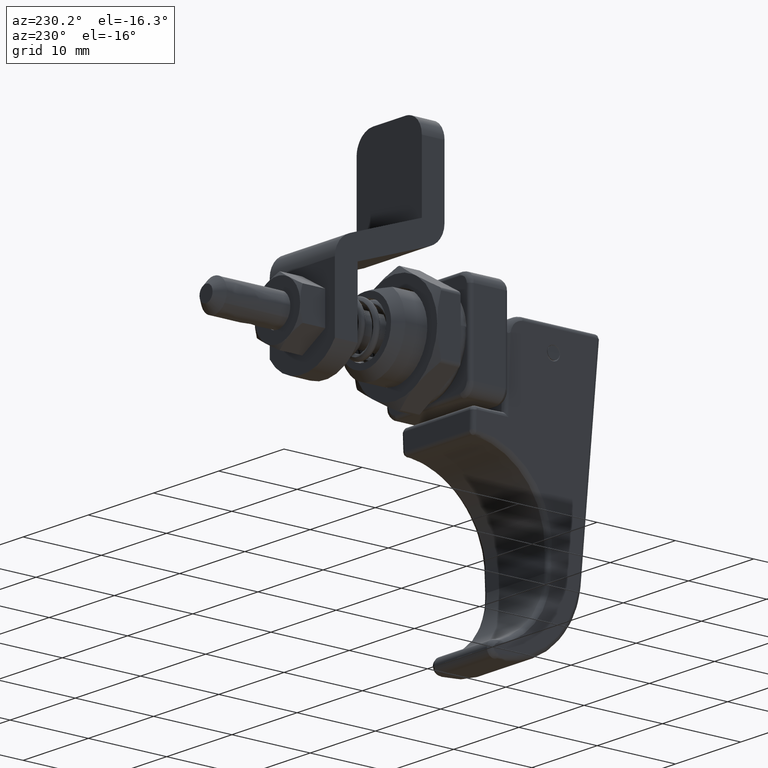
[diagram: clean part render]
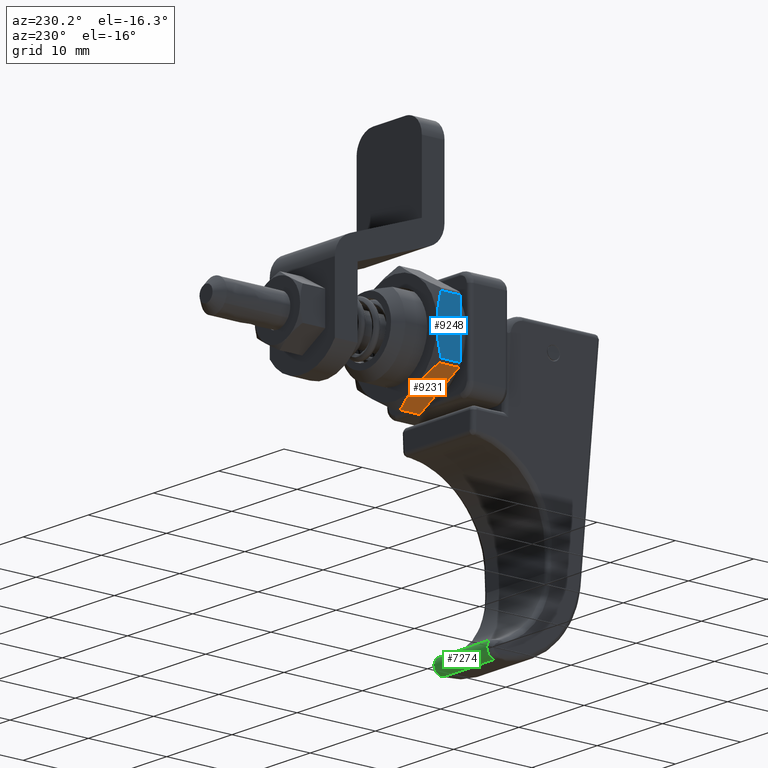
[diagram: same view with three faces highlighted in distinct colors, each labeled with its STEP entity id]
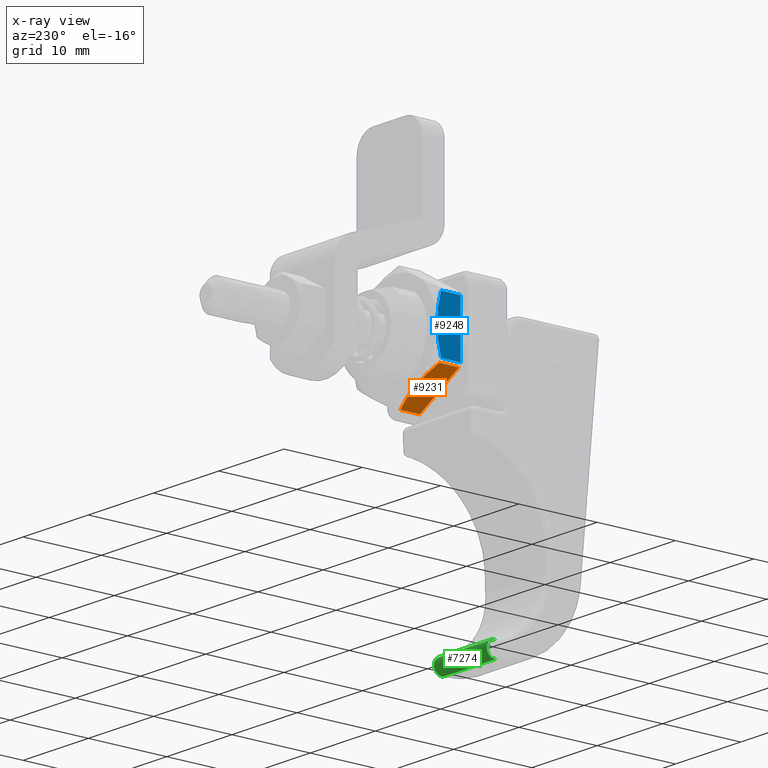
[diagram: x-ray of the same camera — body ghosted, the three highlighted faces saturated]
A machine part, auxiliary view with three faces highlighted in distinct colors.
The next image is the same camera in x-ray (body ghosted, the three faces saturated) — at least one of them is partly hidden behind the body in this view.
Their STEP definitions:

[orange] entity #9231 — the highlighted face is a freeform B-spline surface patch.
#8564=CARTESIAN_POINT('',(3.704132936201760,0.249741191929229,-7.355149615213330));
#8565=VERTEX_POINT('',#8564);
#8590=CARTESIAN_POINT('',(1.200000000000102,0.249741191929240,-7.355149615213330));
#8591=VERTEX_POINT('',#8590);
#8601=CARTESIAN_POINT('',(3.704132936201760,0.249741191929229,-7.355149615213330));
#8602=CARTESIAN_POINT('',(1.200000000000102,0.249741191929240,-7.355149615213330));
#8603=QUASI_UNIFORM_CURVE('',1,(#8601,#8602),.UNSPECIFIED.,.F.,.U.);
#8604=EDGE_CURVE('',#8565,#8591,#8603,.T.);
#8623=CARTESIAN_POINT('',(3.703809464428795,6.250241191929240,-3.886300730832000));
#8624=VERTEX_POINT('',#8623);
#8644=CARTESIAN_POINT('',(1.200000000000102,6.250241191929240,-3.886300730832000));
#8645=VERTEX_POINT('',#8644);
#8646=CARTESIAN_POINT('',(1.200000000000102,6.250241191929240,-3.886300730832000));
#8647=CARTESIAN_POINT('',(3.703809464428795,6.250241191929240,-3.886300730832000));
#8648=QUASI_UNIFORM_CURVE('',1,(#8646,#8647),.UNSPECIFIED.,.F.,.U.);
#8649=EDGE_CURVE('',#8645,#8624,#8648,.T.);
#8745=CARTESIAN_POINT('',(4.200000000000100,3.516325506869315,-5.466759088321001));
#8746=VERTEX_POINT('',#8745);
#8747=CARTESIAN_POINT('',(4.200000000000100,3.516325506869315,-5.466759088321001));
#8748=CARTESIAN_POINT('',(4.194854535261740,3.678983104164440,-5.372727820107795));
#8749=CARTESIAN_POINT('',(4.185017497411984,3.841955153068863,-5.278514769524104));
#8750=CARTESIAN_POINT('',(4.159234962978030,4.132254452350044,-5.110694687789546));
#8751=CARTESIAN_POINT('',(4.145115833745989,4.259646525267732,-5.037050183161674));
#8752=CARTESIAN_POINT('',(4.111504419544477,4.513941679372187,-4.890043856752403));
#8753=CARTESIAN_POINT('',(4.092078494073244,4.640424129123129,-4.816925199188471));
#8754=CARTESIAN_POINT('',(3.982802633821609,5.269753126803206,-4.453114318176665));
#8755=CARTESIAN_POINT('',(3.856623335350797,5.763377675565747,-4.167753270717590));
#8756=CARTESIAN_POINT('',(3.703809464428795,6.250241191929240,-3.886300730832000));
#8757=B_SPLINE_CURVE_WITH_KNOTS('',3,(#8747,#8748,#8749,#8750,#8751,#8752,#8753,#8754,#8755,#8756),.UNSPECIFIED.,.F.,.U.,(4,2,2,2,4),(0.544652580552481,0.624999999999999,0.687499999999999,0.749999999999999,1.0),.UNSPECIFIED.);
#8758=EDGE_CURVE('',#8746,#8624,#8757,.T.);
#9070=CARTESIAN_POINT('',(4.200000000000100,2.982626151296306,-5.775287113347990));
#9071=VERTEX_POINT('',#9070);
#9072=CARTESIAN_POINT('',(3.704132936201760,0.249741191929229,-7.355149615213330));
#9073=CARTESIAN_POINT('',(3.742696319759100,0.372636735217564,-7.284104524265714));
#9074=CARTESIAN_POINT('',(3.779622081705771,0.496199727322220,-7.212673585625091));
#9075=CARTESIAN_POINT('',(3.849606854967679,0.744026119760612,-7.069406807034945));
#9076=CARTESIAN_POINT('',(3.882607372498596,0.868072820639062,-6.997696239590000));
#9077=CARTESIAN_POINT('',(3.975140009307241,1.240646501162380,-6.782313888780371));
#9078=CARTESIAN_POINT('',(4.028192138172886,1.489607800970116,-6.638391027836758));
#9079=CARTESIAN_POINT('',(4.114530512826672,1.988855205255263,-6.349779445237838));
#9080=CARTESIAN_POINT('',(4.147802064506276,2.239142294602595,-6.205090154235833));
#9081=CARTESIAN_POINT('',(4.184817119230390,2.654000244592665,-5.965263550286200));
#9082=CARTESIAN_POINT('',(4.194797294798901,2.818153093409133,-5.870367887177288));
#9083=CARTESIAN_POINT('',(4.200000000000100,2.982626151296306,-5.775287113347990));
#9084=B_SPLINE_CURVE_WITH_KNOTS('',3,(#9072,#9073,#9074,#9075,#9076,#9077,#9078,#9079,#9080,#9081,#9082,#9083),.UNSPECIFIED.,.F.,.U.,(4,2,2,2,2,4),(0.0,0.062500000000000,0.125000000000000,0.250000000000000,0.374999999999999,0.456589406416601),.UNSPECIFIED.);
#9085=EDGE_CURVE('',#8565,#9071,#9084,.T.);
#9106=CARTESIAN_POINT('',(4.200000000000100,3.516325506869315,-5.466759088321001));
#9107=CARTESIAN_POINT('',(4.200000000000100,2.982626151296306,-5.775287113347990));
#9108=QUASI_UNIFORM_CURVE('',1,(#9106,#9107),.UNSPECIFIED.,.F.,.U.);
#9109=EDGE_CURVE('',#8746,#9071,#9108,.T.);
#9214=CARTESIAN_POINT('',(1.050150044694645,-0.049983827769036,-7.528418642827949));
#9215=CARTESIAN_POINT('',(1.050150044694645,6.549966318924811,-3.713031641189534));
#9216=CARTESIAN_POINT('',(4.349849848017198,-0.049983827769036,-7.528418642827949));
#9217=CARTESIAN_POINT('',(4.349849848017198,6.549966318924811,-3.713031641189534));
#9218=B_SPLINE_SURFACE_WITH_KNOTS('',1,1,((#9214,#9216),(#9215,#9217)),.UNSPECIFIED.,.F.,.F.,.U.,(2,2),(2,2),(0.0,7.623419174564358),(0.0,3.299699803322552),.UNSPECIFIED.);
#9219=CARTESIAN_POINT('',(1.200000000000102,6.250241191929240,-3.886300730832000));
#9220=CARTESIAN_POINT('',(1.200000000000102,0.249741191929240,-7.355149615213330));
#9221=QUASI_UNIFORM_CURVE('',1,(#9219,#9220),.UNSPECIFIED.,.F.,.U.);
#9222=EDGE_CURVE('',#8645,#8591,#9221,.T.);
#9223=ORIENTED_EDGE('',*,*,#9222,.F.);
#9224=ORIENTED_EDGE('',*,*,#8649,.T.);
#9225=ORIENTED_EDGE('',*,*,#8758,.F.);
#9226=ORIENTED_EDGE('',*,*,#9109,.T.);
#9227=ORIENTED_EDGE('',*,*,#9085,.F.);
#9228=ORIENTED_EDGE('',*,*,#8604,.T.);
#9229=EDGE_LOOP('',(#9223,#9224,#9225,#9226,#9227,#9228));
#9230=FACE_OUTER_BOUND('',#9229,.T.);
#9231=ADVANCED_FACE('',(#9230),#9218,.T.);

[blue] entity #9248 — the highlighted face is a freeform B-spline surface patch.
#8625=CARTESIAN_POINT('',(3.703522842762810,6.500000000000000,-3.453427370757985));
#8626=VERTEX_POINT('',#8625);
#8651=CARTESIAN_POINT('',(1.200000000000102,6.500000000000000,-3.453427370757910));
#8652=VERTEX_POINT('',#8651);
#8662=CARTESIAN_POINT('',(3.703522842762810,6.500000000000000,-3.453427370757985));
#8663=CARTESIAN_POINT('',(1.200000000000102,6.500000000000000,-3.453427370757910));
#8664=QUASI_UNIFORM_CURVE('',1,(#8662,#8663),.UNSPECIFIED.,.F.,.U.);
#8665=EDGE_CURVE('',#8626,#8652,#8664,.T.);
#8684=CARTESIAN_POINT('',(3.703522842762820,6.500000000000000,3.453427370757910));
#8685=VERTEX_POINT('',#8684);
#8705=CARTESIAN_POINT('',(1.200000000000102,6.500000000000000,3.453427370757910));
#8706=VERTEX_POINT('',#8705);
#8707=CARTESIAN_POINT('',(1.200000000000102,6.500000000000000,3.453427370757910));
#8708=CARTESIAN_POINT('',(3.703522842762820,6.500000000000000,3.453427370757910));
#8709=QUASI_UNIFORM_CURVE('',1,(#8707,#8708),.UNSPECIFIED.,.F.,.U.);
#8710=EDGE_CURVE('',#8706,#8685,#8709,.T.);
#8761=CARTESIAN_POINT('',(4.200000000000100,6.500000000000000,0.0));
#8762=VERTEX_POINT('',#8761);
#8763=CARTESIAN_POINT('',(3.703522842762809,6.500000000000000,-3.453427370757984));
#8764=CARTESIAN_POINT('',(3.741724895897793,6.500000000000002,-3.312315133853093));
#8765=CARTESIAN_POINT('',(3.778276887130393,6.500000000000001,-3.170558149679702));
#8766=CARTESIAN_POINT('',(3.847707093848200,6.499999999999999,-2.885608685564673));
#8767=CARTESIAN_POINT('',(3.880587230906564,6.500000000000001,-2.742372162990535));
#8768=CARTESIAN_POINT('',(3.972635758252167,6.499999999999999,-2.312704661592992));
#8769=CARTESIAN_POINT('',(4.025392054328680,6.500000000000000,-2.025567378001193));
#8770=CARTESIAN_POINT('',(4.111204197057366,6.499999999999999,-1.449708693777814));
#8771=CARTESIAN_POINT('',(4.144245483790931,6.500000000000000,-1.160986122380296));
#8772=CARTESIAN_POINT('',(4.188648841721897,6.500000000000001,-0.581813868616819));
#8773=CARTESIAN_POINT('',(4.199999994757513,6.500000000000001,-0.291363308319305));
#8774=CARTESIAN_POINT('',(4.200000000000100,6.500000000000000,0.0));
#8775=B_SPLINE_CURVE_WITH_KNOTS('',3,(#8763,#8764,#8765,#8766,#8767,#8768,#8769,#8770,#8771,#8772,#8773,#8774),.UNSPECIFIED.,.F.,.U.,(4,2,2,2,2,4),(0.0,0.062500000000000,0.125000000000000,0.250000000000000,0.375000000000000,0.499993085027315),.UNSPECIFIED.);
#8776=EDGE_CURVE('',#8626,#8762,#8775,.T.);
#8807=CARTESIAN_POINT('',(4.200000000000100,6.500000000000000,0.0));
#8808=CARTESIAN_POINT('',(4.199999999999956,6.500000000000001,0.000016119212236));
#8809=CARTESIAN_POINT('',(4.199999999965504,6.500000000000001,0.000032238188444));
#8810=CARTESIAN_POINT('',(4.199998749112226,6.500000000000001,0.291427885550657));
#8811=CARTESIAN_POINT('',(4.188641370680635,6.500000000000001,0.583720562407025));
#8812=CARTESIAN_POINT('',(4.154713419042636,6.500000000000001,1.023517857428608));
#8813=CARTESIAN_POINT('',(4.140611493124533,6.500000000000000,1.170038834108533));
#8814=CARTESIAN_POINT('',(4.107288350978209,6.500000000000002,1.461162575037946));
#8815=CARTESIAN_POINT('',(4.088048390540013,6.500000000000000,1.606034851846588));
#8816=CARTESIAN_POINT('',(3.979856577176287,6.500000000000000,2.327188956593542));
#8817=CARTESIAN_POINT('',(3.855006843435507,6.500000000000000,2.893869848687155));
#8818=CARTESIAN_POINT('',(3.703522842762816,6.500000000000000,3.453427370757908));
#8819=B_SPLINE_CURVE_WITH_KNOTS('',3,(#8807,#8808,#8809,#8810,#8811,#8812,#8813,#8814,#8815,#8816,#8817,#8818),.UNSPECIFIED.,.F.,.U.,(4,2,2,2,2,4),(0.0,0.000006914941439,0.125006914941439,0.187506914941439,0.250006914941439,0.500006914941439),.UNSPECIFIED.);
#8820=EDGE_CURVE('',#8762,#8685,#8819,.T.);
#9232=CARTESIAN_POINT('',(1.050150044694645,6.500000000000000,-3.798424686873268));
#9233=CARTESIAN_POINT('',(1.050150044694645,6.500000000000000,3.798424933881567));
#9234=CARTESIAN_POINT('',(4.349849848017197,6.500000000000000,-3.798424686873268));
#9235=CARTESIAN_POINT('',(4.349849848017197,6.500000000000000,3.798424933881567));
#9236=B_SPLINE_SURFACE_WITH_KNOTS('',1,1,((#9232,#9234),(#9233,#9235)),.UNSPECIFIED.,.F.,.F.,.U.,(2,2),(2,2),(0.0,7.596849620754834),(0.0,3.299699803322552),.UNSPECIFIED.);
#9237=CARTESIAN_POINT('',(1.200000000000102,6.500000000000000,3.453427370757910));
#9238=CARTESIAN_POINT('',(1.200000000000102,6.500000000000000,-3.453427370757910));
#9239=QUASI_UNIFORM_CURVE('',1,(#9237,#9238),.UNSPECIFIED.,.F.,.U.);
#9240=EDGE_CURVE('',#8706,#8652,#9239,.T.);
#9241=ORIENTED_EDGE('',*,*,#9240,.F.);
#9242=ORIENTED_EDGE('',*,*,#8710,.T.);
#9243=ORIENTED_EDGE('',*,*,#8820,.F.);
#9244=ORIENTED_EDGE('',*,*,#8776,.F.);
#9245=ORIENTED_EDGE('',*,*,#8665,.T.);
#9246=EDGE_LOOP('',(#9241,#9242,#9243,#9244,#9245));
#9247=FACE_OUTER_BOUND('',#9246,.T.);
#9248=ADVANCED_FACE('',(#9247),#9236,.T.);

[green] entity #7274 — the highlighted face is a freeform B-spline surface patch.
#4284=CARTESIAN_POINT('',(-5.199870963593970,4.063310480694195,-30.000100008325202));
#4285=VERTEX_POINT('',#4284);
#4291=CARTESIAN_POINT('',(-5.333376295780250,4.020649602529015,-31.991165468939300));
#4292=VERTEX_POINT('',#4291);
#4293=CARTESIAN_POINT('',(-5.333376295780250,4.020649602529096,-31.991165468939329));
#4294=CARTESIAN_POINT('',(-4.731362190419095,4.018913692442673,-32.072183740584364));
#4295=CARTESIAN_POINT('',(-4.381973647486465,4.029560413345966,-31.575280742543939));
#4296=CARTESIAN_POINT('',(-4.032585104553834,4.040207134249258,-31.078377744503523));
#4297=CARTESIAN_POINT('',(-4.312507382302248,4.051757967758871,-30.539278067436030));
#4298=CARTESIAN_POINT('',(-4.592429660050661,4.063308801268486,-30.000178390368532));
#4299=CARTESIAN_POINT('',(-5.199870963593970,4.063310480694195,-30.000100008325202));
#4307=(BOUNDED_CURVE()B_SPLINE_CURVE(2,(#4293,#4294,#4295,#4296,#4297,#4298,#4299),.UNSPECIFIED.,.F.,.U.)B_SPLINE_CURVE_WITH_KNOTS((3,2,2,3),(0.0,0.333333333333333,0.666666666666667,1.0),.UNSPECIFIED.)CURVE()GEOMETRIC_REPRESENTATION_ITEM()RATIONAL_B_SPLINE_CURVE((1.0,0.854674337857790,1.0,0.854674337857790,1.0,0.854674337857790,1.0))REPRESENTATION_ITEM(''));
#4308=EDGE_CURVE('',#4292,#4285,#4307,.T.);
#6181=CARTESIAN_POINT('',(-4.202239426622421,-4.041451199326390,-31.066986756635700));
#6182=VERTEX_POINT('',#6181);
#6183=CARTESIAN_POINT('',(-5.333376295780250,-4.021649602528930,-31.991165468939300));
#6184=VERTEX_POINT('',#6183);
#6185=CARTESIAN_POINT('',(-4.202239426622421,-4.041451199326390,-31.066986756635700));
#6186=CARTESIAN_POINT('',(-4.209045104271298,-4.039263357296857,-31.169097563670860));
#6187=CARTESIAN_POINT('',(-4.248754944482656,-4.035475351511495,-31.345891099298829));
#6188=CARTESIAN_POINT('',(-4.389903271783647,-4.029791336207659,-31.611175055837158));
#6189=CARTESIAN_POINT('',(-4.579466784388273,-4.025713398461360,-31.801500275251609));
#6190=CARTESIAN_POINT('',(-4.804523026939688,-4.023043675840724,-31.926101378838290));
#6191=CARTESIAN_POINT('',(-5.041973129001899,-4.021461642923076,-31.999937906246760));
#6192=CARTESIAN_POINT('',(-5.223475800695520,-4.021331976610093,-32.005989683151292));
#6193=CARTESIAN_POINT('',(-5.333376295780250,-4.021649602528930,-31.991165468939300));
#6194=B_SPLINE_CURVE_WITH_KNOTS('',3,(#6185,#6186,#6187,#6188,#6189,#6190,#6191,#6192,#6193),.UNSPECIFIED.,.F.,.U.,(4,1,1,1,1,1,4),(0.000000081119405,0.307080138743406,0.537400209295965,0.895636670834322,1.100369642055737,1.305097555930313,1.637769300834695),.UNSPECIFIED.);
#6195=EDGE_CURVE('',#6182,#6184,#6194,.T.);
#6197=CARTESIAN_POINT('',(-5.199870963593970,-4.064310480694219,-30.000100008325202));
#6198=VERTEX_POINT('',#6197);
#6199=CARTESIAN_POINT('',(-5.199870963593970,-4.064310480694219,-30.000100008325202));
#6200=CARTESIAN_POINT('',(-5.097505999880962,-4.064310779395615,-30.000086067354850));
#6201=CARTESIAN_POINT('',(-4.901354350511751,-4.063657411358825,-30.030580013729999));
#6202=CARTESIAN_POINT('',(-4.660661792911761,-4.061179088576942,-30.146248117704381));
#6203=CARTESIAN_POINT('',(-4.455824029026735,-4.057549476544392,-30.315649111406660));
#6204=CARTESIAN_POINT('',(-4.314674383686064,-4.053348213407209,-30.511730164659291));
#6205=CARTESIAN_POINT('',(-4.212877607448228,-4.047692135147718,-30.775710245458860));
#6206=CARTESIAN_POINT('',(-4.194760543026575,-4.043821352652868,-30.956367129763649));
#6207=CARTESIAN_POINT('',(-4.202239426622421,-4.041451199326390,-31.066986756635700));
#6208=B_SPLINE_CURVE_WITH_KNOTS('',3,(#6199,#6200,#6201,#6202,#6203,#6204,#6205,#6206,#6207),.UNSPECIFIED.,.F.,.U.,(4,1,1,1,1,1,4),(0.000000085126766,0.307085062289935,0.588591990861922,0.793317077006879,1.100387279964505,1.305118476600589,1.637795555386360),.UNSPECIFIED.);
#6209=EDGE_CURVE('',#6198,#6182,#6208,.T.);
#7232=CARTESIAN_POINT('',(-5.199870963593970,-4.064310480694219,-30.000100008325202));
#7233=CARTESIAN_POINT('',(-5.199870963593970,4.063310480694195,-30.000100008325202));
#7234=QUASI_UNIFORM_CURVE('',1,(#7232,#7233),.UNSPECIFIED.,.F.,.U.);
#7235=EDGE_CURVE('',#6198,#4285,#7234,.T.);
#7245=CARTESIAN_POINT('',(-5.376479019694511,-4.267501004728930,-31.984404401904040));
#7246=CARTESIAN_POINT('',(-5.376479019694511,4.271580767829772,-31.984404401904040));
#7247=CARTESIAN_POINT('',(-4.273659110630847,-4.267501004728931,-32.182132438144322));
#7248=CARTESIAN_POINT('',(-4.273659110630847,4.271580767829772,-32.182132438144322));
#7249=CARTESIAN_POINT('',(-4.202044856657540,-4.267501004728930,-31.064018165464429));
#7250=CARTESIAN_POINT('',(-4.202044856657540,4.271580767829772,-31.064018165464429));
#7251=CARTESIAN_POINT('',(-4.130430602684234,-4.267501004728931,-29.945903892784532));
#7252=CARTESIAN_POINT('',(-4.130430602684234,4.271580767829772,-29.945903892784532));
#7253=CARTESIAN_POINT('',(-5.249464439150639,-4.267501004728930,-30.001324114598511));
#7254=CARTESIAN_POINT('',(-5.249464439150639,4.271580767829772,-30.001324114598511));
#7262=(BOUNDED_SURFACE()B_SPLINE_SURFACE(1,2,((#7245,#7247,#7249,#7251,#7253),(#7246,#7248,#7250,#7252,#7254)),.UNSPECIFIED.,.F.,.F.,.U.)B_SPLINE_SURFACE_WITH_KNOTS((2,2),(3,2,3),(0.0,8.539081772558703),(0.0,1.0,2.0),.UNSPECIFIED.)GEOMETRIC_REPRESENTATION_ITEM()RATIONAL_B_SPLINE_SURFACE(((1.0,0.665881666000835,1.0,0.665881666000835,1.0),(1.0,0.665881666000835,1.0,0.665881666000835,1.0)))REPRESENTATION_ITEM('')SURFACE());
#7263=CARTESIAN_POINT('',(-5.333376295780250,-4.021649602528930,-31.991165468939300));
#7264=CARTESIAN_POINT('',(-5.333376295780250,4.020649602529015,-31.991165468939300));
#7265=QUASI_UNIFORM_CURVE('',1,(#7263,#7264),.UNSPECIFIED.,.F.,.U.);
#7266=EDGE_CURVE('',#6184,#4292,#7265,.T.);
#7267=ORIENTED_EDGE('',*,*,#7266,.T.);
#7268=ORIENTED_EDGE('',*,*,#4308,.T.);
#7269=ORIENTED_EDGE('',*,*,#7235,.F.);
#7270=ORIENTED_EDGE('',*,*,#6209,.T.);
#7271=ORIENTED_EDGE('',*,*,#6195,.T.);
#7272=EDGE_LOOP('',(#7267,#7268,#7269,#7270,#7271));
#7273=FACE_OUTER_BOUND('',#7272,.T.);
#7274=ADVANCED_FACE('',(#7273),#7262,.T.);